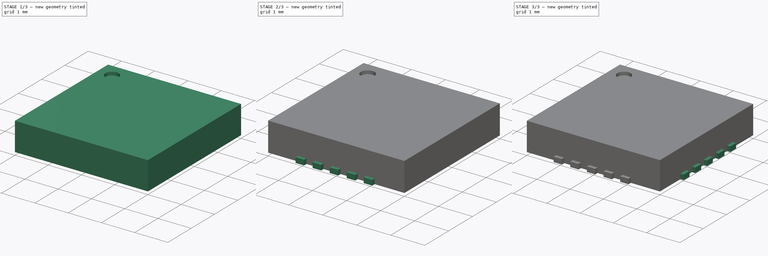
[diagram: build sequence overview — one tinted view per stage of 3, left to right]
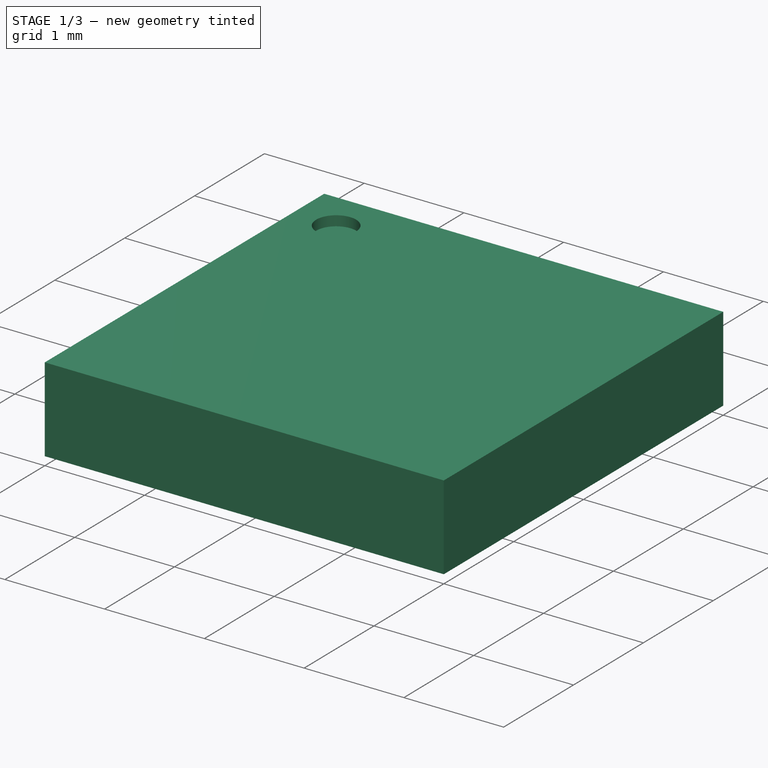
[diagram: stage 1 of 3 — iso view after this stage's code; geometry added in this stage tinted green]
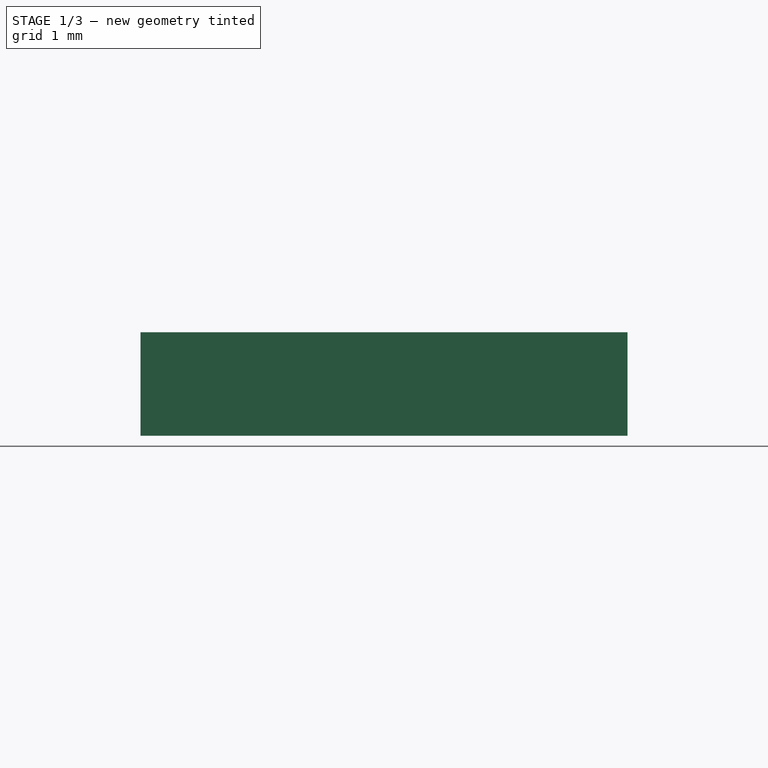
[diagram: stage 1 of 3 — front view after this stage's code; geometry added in this stage tinted green]
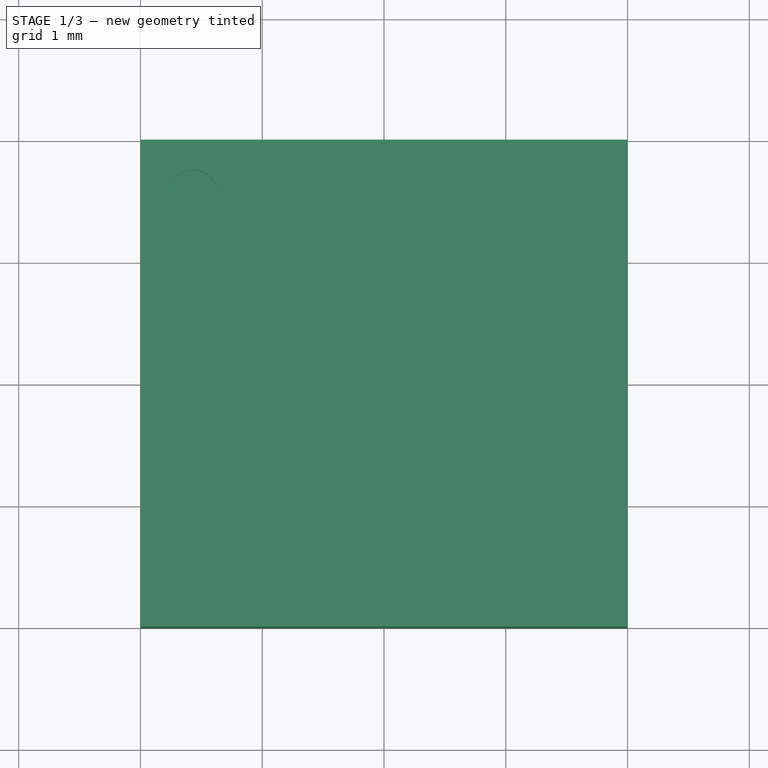
[diagram: stage 1 of 3 — top view after this stage's code; geometry added in this stage tinted green]
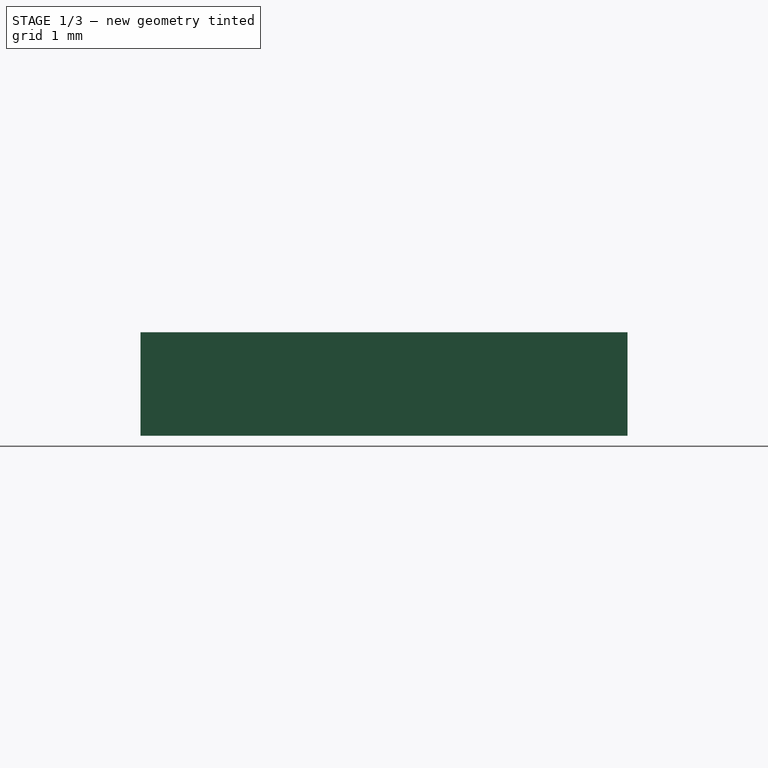
[diagram: stage 1 of 3 — right view after this stage's code; geometry added in this stage tinted green]
FCSTD DOCUMENT  (FreeCAD 0.19R24291 (Git))
Label: NRF Chip
License: All rights reserved
LicenseURL: http://en.wikipedia.org/wiki/All_rights_reserved
objects: Sketcher::SketchObject×4, PartDesign::Pad×3, PartDesign::Body×3, Part::FeaturePython×2, PartDesign::Pocket×1
note: 15 computed .brp shape members not serialized (recipe doc carries the construction recipe); baked Part::Feature solids carry a one-line shape summary decoded from their .brp

FEATURE [Sketcher::SketchObject] Sketch
  FullyConstrained = true
  MapMode = 5
  Support = -> [XY_Plane]
  sketch-geometry (4):
    g0: LineSegment StartX=-2 StartY=2 StartZ=0 EndX=2 EndY=2 EndZ=0
    g1: LineSegment StartX=2 StartY=2 StartZ=0 EndX=2 EndY=-2 EndZ=0
    g2: LineSegment StartX=2 StartY=-2 StartZ=0 EndX=-2 EndY=-2 EndZ=0
    g3: LineSegment StartX=-2 StartY=-2 StartZ=0 EndX=-2 EndY=2 EndZ=0
  constraints (11):
    c: Coincident(g0,g1)
    c: Coincident(g1,g2)
    c: Coincident(g2,g3)
    c: Coincident(g3,g0)
    c: Horizontal(g0)
    c: Horizontal(g2)
    c: Vertical(g1)
    c: Vertical(g3)
    c: Symmetric(g0,g1,g-1)
    c: Equal(g0,g3)
    c: DistanceX(g0,g0) = 4
FEATURE [PartDesign::Pad] Pad
  Direction = (1,1,1)
  Length = 0.85
  Length2 = 100
  Profile = -> Sketch
  Type = 0
FEATURE [Sketcher::SketchObject] Sketch003
  FullyConstrained = false
  MapMode = 5
  Placement = pos=(0,0,0.85) rot=(0,0,1;0rad)
  Support = -> [Pad]
  sketch-geometry (1):
    g0: Circle CenterX=-1.5648 CenterY=1.55006 CenterZ=0 NormalX=0 NormalY=0 NormalZ=1 AngleXU=0 Radius=0.2
  constraints (1):
    c: Diameter(g0) = 0.4
FEATURE [PartDesign::Pocket] Pocket
  BaseFeature = -> Pad
  Length = 0.1
  Length2 = 100
  Profile = -> Sketch003
  Type = 0
FEATURE [PartDesign::Body] Body
  Group = -> [Sketch,Pad,Sketch003,Pocket]
  Origin = -> Origin
  Tip = -> Pocket
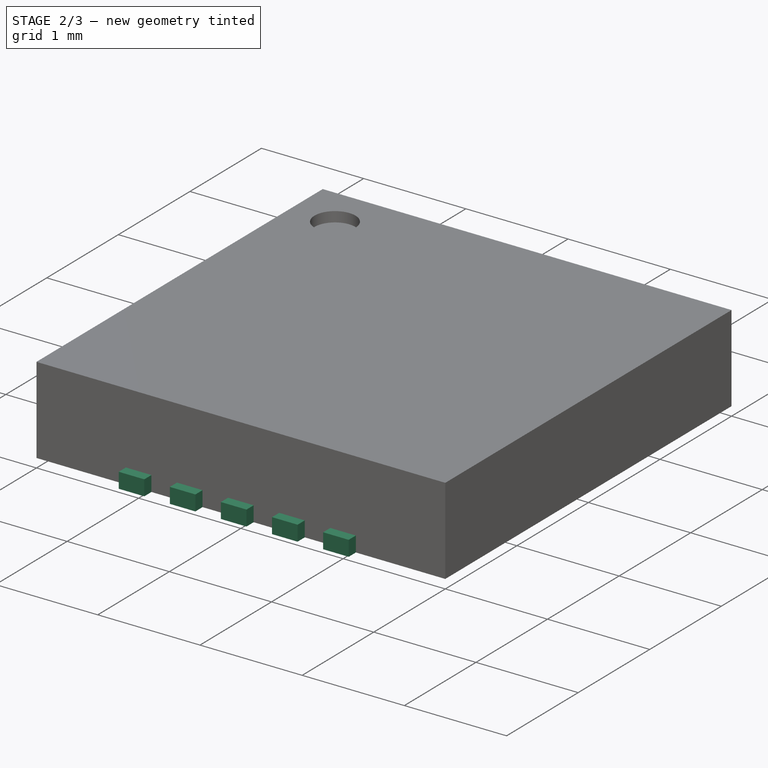
[diagram: stage 2 of 3 — iso view after this stage's code; geometry added in this stage tinted green]
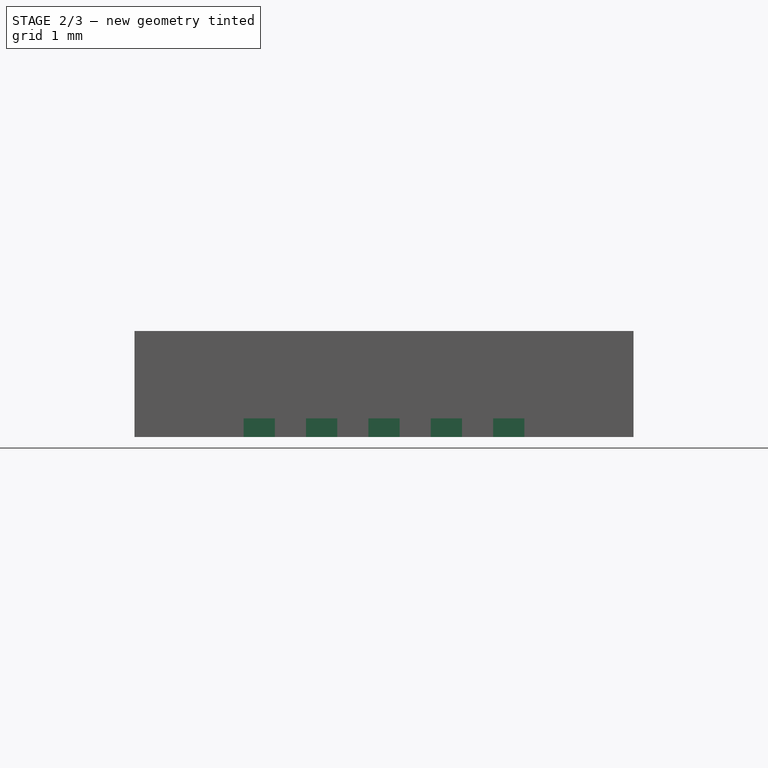
[diagram: stage 2 of 3 — front view after this stage's code; geometry added in this stage tinted green]
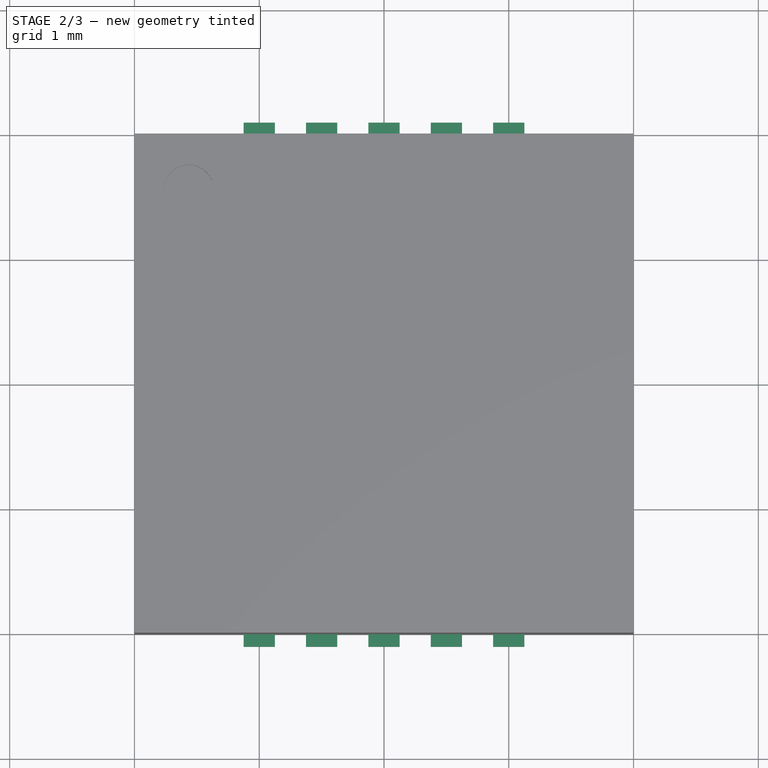
[diagram: stage 2 of 3 — top view after this stage's code; geometry added in this stage tinted green]
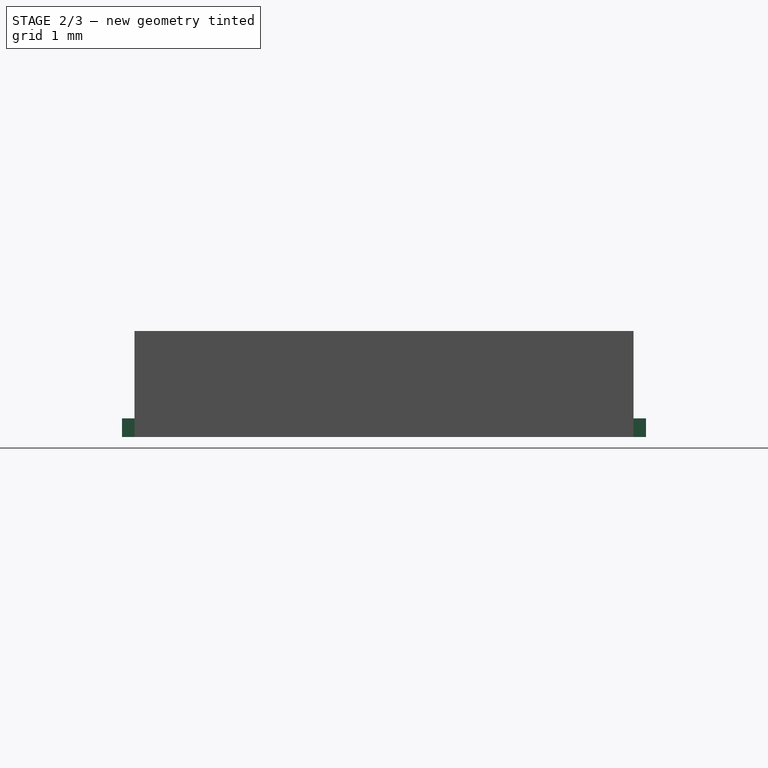
[diagram: stage 2 of 3 — right view after this stage's code; geometry added in this stage tinted green]
FEATURE [Sketcher::SketchObject] Sketch002
  FullyConstrained = true
  MapMode = 5
  Support = -> [XY_Plane002]
  sketch-geometry (4):
    g0: LineSegment StartX=-2.1 StartY=0.125 StartZ=0 EndX=2.1 EndY=0.125 EndZ=0
    g1: LineSegment StartX=2.1 StartY=0.125 StartZ=0 EndX=2.1 EndY=-0.125 EndZ=0
    g2: LineSegment StartX=2.1 StartY=-0.125 StartZ=0 EndX=-2.1 EndY=-0.125 EndZ=0
    g3: LineSegment StartX=-2.1 StartY=-0.125 StartZ=0 EndX=-2.1 EndY=0.125 EndZ=0
  constraints (11):
    c: Coincident(g0,g1)
    c: Coincident(g1,g2)
    c: Coincident(g2,g3)
    c: Coincident(g3,g0)
    c: Horizontal(g0)
    c: Horizontal(g2)
    c: Vertical(g1)
    c: Vertical(g3)
    c: Symmetric(g1,g0,g-1)
    c: DistanceX(g0,g0) = 4.2
    c: DistanceY(g1,g1) = 0.25
FEATURE [PartDesign::Pad] Pad002
  Direction = (1,1,1)
  Length = 0.15
  Length2 = 100
  Profile = -> Sketch002
  Type = 0
FEATURE [PartDesign::Body] Body002
  Group = -> [Sketch002,Pad002]
  Origin = -> Origin002
  Placement = pos=(0,-1,0) rot=(0,0,1;0rad)
  Tip = -> Pad002
FEATURE [Part::FeaturePython] Array001  # Draft array (typed FeaturePython)
  Angle = 360
  ArrayType = 0
  Axis = (0,0,1)
  Base = -> Body002
  Center = (0,0,0)
  Count = 5
  ExpandArray = false
  Fuse = false
  IntervalAxis = (0,0,0)
  IntervalX = (100,0,0)
  IntervalY = (0,0.5,0)
  IntervalZ = (0,0,100)
  NumberCircles = 3
  NumberPolar = 5
  NumberX = 1
  NumberY = 5
  NumberZ = 1
  Placement = pos=(0,0,0) rot=(0,0,1;1.5708rad)
  PlacementList = 5 placements: arithmetic series from (0,-1,0) step (0,0.5,0) to (0,1,0)
  RadialDistance = 50
  ScaleList = (5) [(1,1,1),(1,1,1),(1,1,1),(1,1,1),(1,1,1)]
  Symmetry = 1
  TangentialDistance = 25
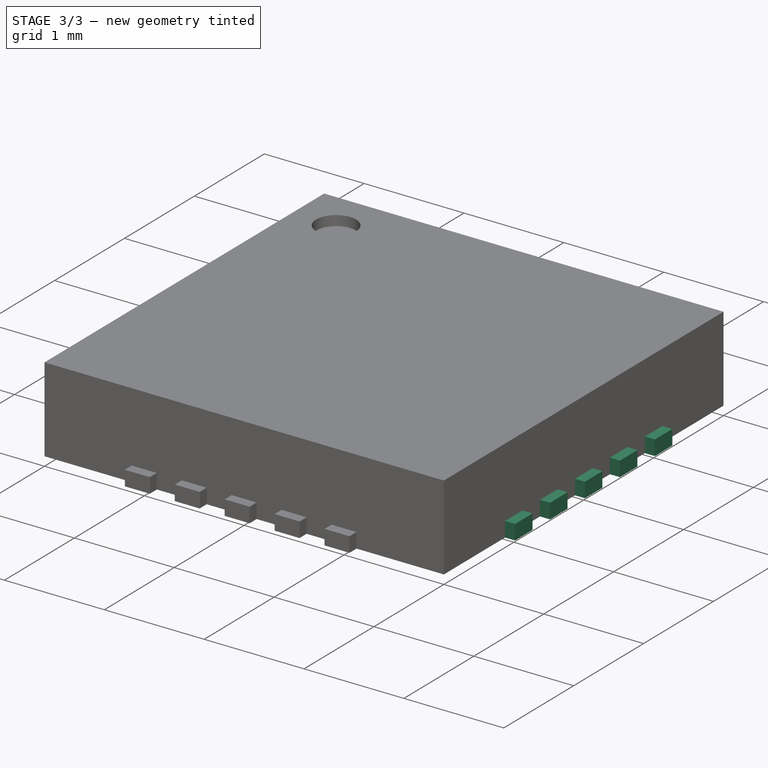
[diagram: stage 3 of 3 — iso view after this stage's code; geometry added in this stage tinted green]
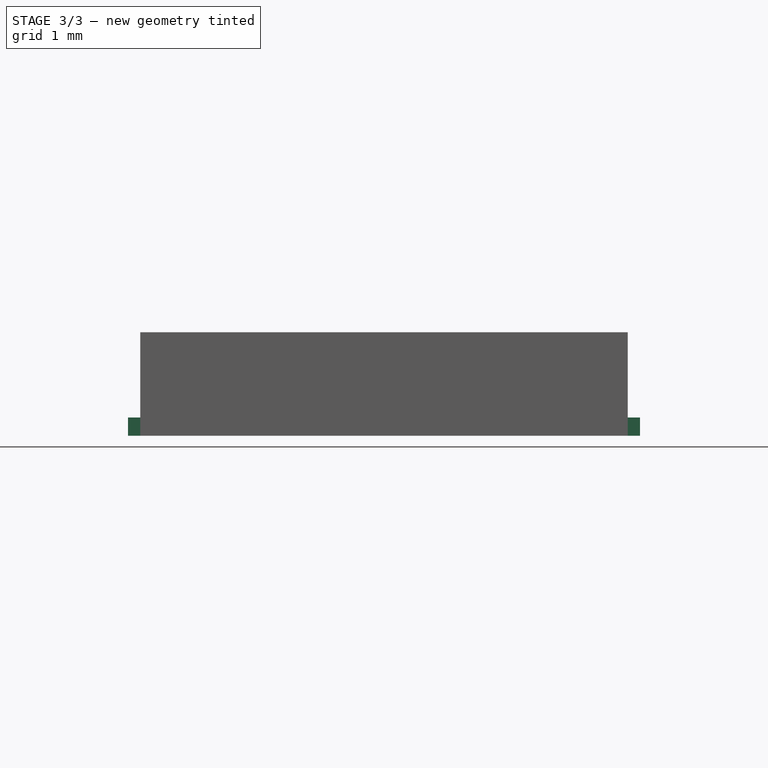
[diagram: stage 3 of 3 — front view after this stage's code; geometry added in this stage tinted green]
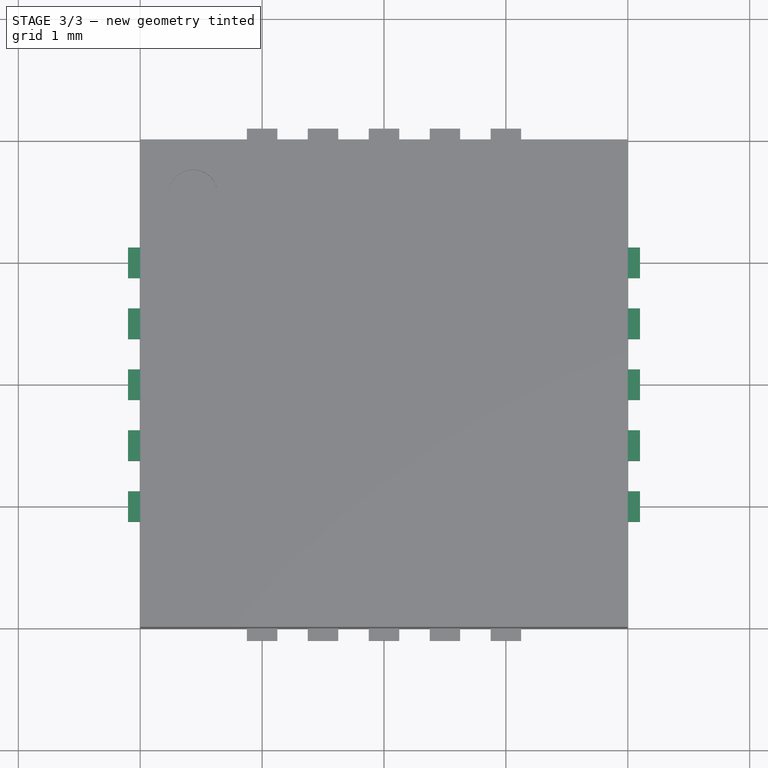
[diagram: stage 3 of 3 — top view after this stage's code; geometry added in this stage tinted green]
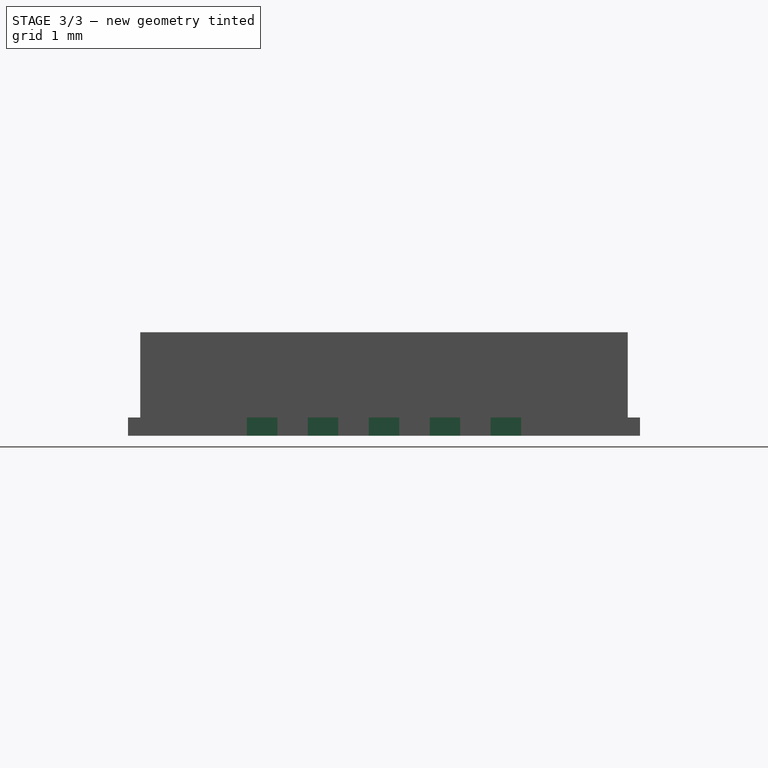
[diagram: stage 3 of 3 — right view after this stage's code; geometry added in this stage tinted green]
FEATURE [Sketcher::SketchObject] Sketch001
  FullyConstrained = true
  MapMode = 5
  Support = -> [XY_Plane001]
  sketch-geometry (4):
    g0: LineSegment StartX=-2.1 StartY=0.125 StartZ=0 EndX=2.1 EndY=0.125 EndZ=0
    g1: LineSegment StartX=2.1 StartY=0.125 StartZ=0 EndX=2.1 EndY=-0.125 EndZ=0
    g2: LineSegment StartX=2.1 StartY=-0.125 StartZ=0 EndX=-2.1 EndY=-0.125 EndZ=0
    g3: LineSegment StartX=-2.1 StartY=-0.125 StartZ=0 EndX=-2.1 EndY=0.125 EndZ=0
  constraints (11):
    c: Coincident(g0,g1)
    c: Coincident(g1,g2)
    c: Coincident(g2,g3)
    c: Coincident(g3,g0)
    c: Horizontal(g0)
    c: Horizontal(g2)
    c: Vertical(g1)
    c: Vertical(g3)
    c: Symmetric(g1,g0,g-1)
    c: DistanceX(g0,g0) = 4.2
    c: DistanceY(g1,g1) = 0.25
FEATURE [PartDesign::Pad] Pad001
  Direction = (1,1,1)
  Length = 0.15
  Length2 = 100
  Profile = -> Sketch001
  Type = 0
FEATURE [PartDesign::Body] Body001
  Group = -> [Sketch001,Pad001]
  Origin = -> Origin001
  Placement = pos=(0,-1,0) rot=(0,0,1;0rad)
  Tip = -> Pad001
FEATURE [Part::FeaturePython] Array  # Draft array (typed FeaturePython)
  Angle = 360
  ArrayType = 0
  Axis = (0,0,1)
  Base = -> Body001
  Center = (0,0,0)
  Count = 5
  ExpandArray = false
  Fuse = false
  IntervalAxis = (0,0,0)
  IntervalX = (100,0,0)
  IntervalY = (0,0.5,0)
  IntervalZ = (0,0,100)
  NumberCircles = 3
  NumberPolar = 5
  NumberX = 1
  NumberY = 5
  NumberZ = 1
  PlacementList = 5 placements: arithmetic series from (0,-1,0) step (0,0.5,0) to (0,1,0)
  RadialDistance = 50
  ScaleList = (5) [(1,1,1),(1,1,1),(1,1,1),(1,1,1),(1,1,1)]
  Symmetry = 1
  TangentialDistance = 25
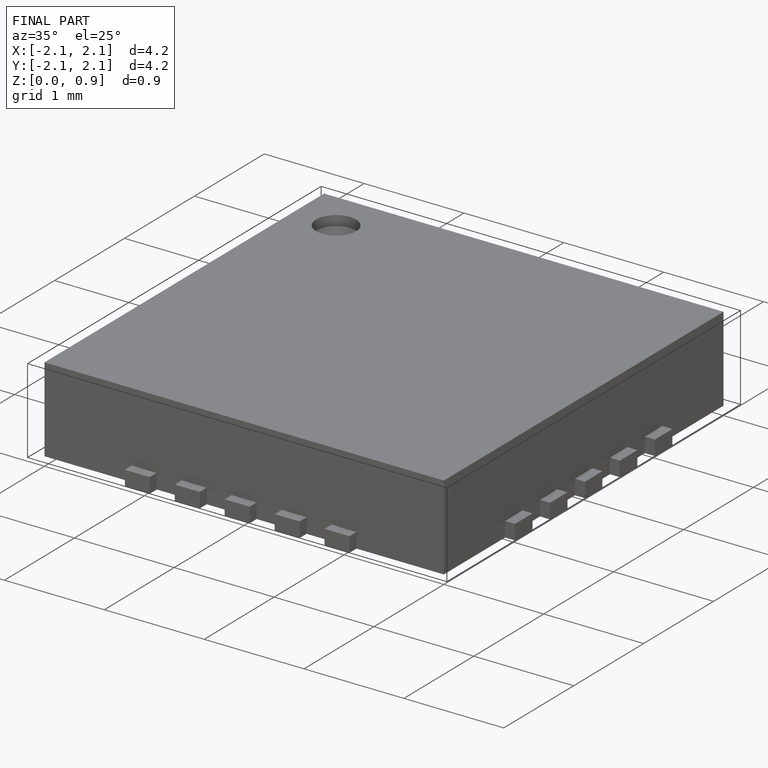
[diagram: finished part — iso view with bounding-box wireframe]
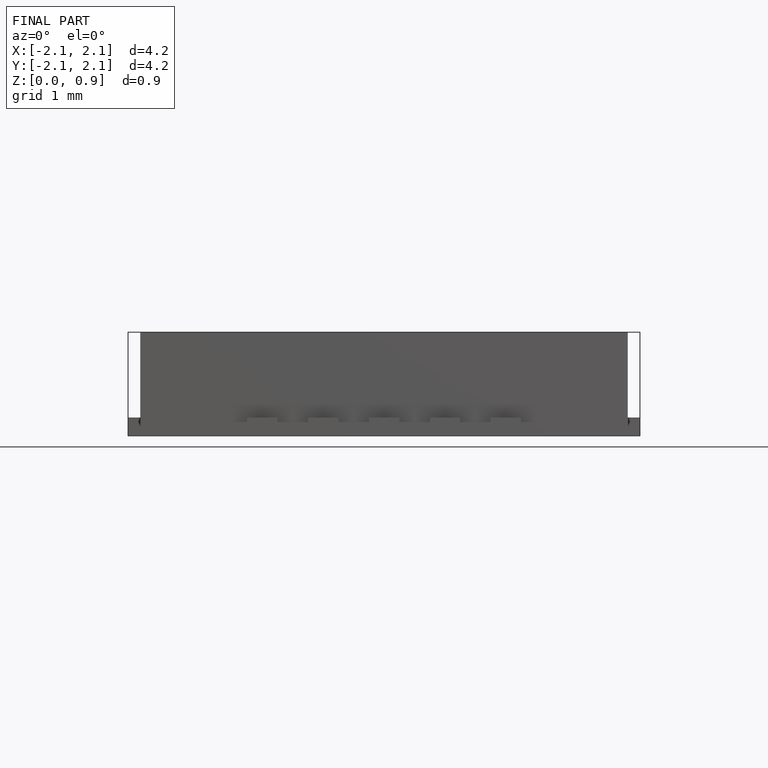
[diagram: finished part — front view with bounding-box wireframe]
